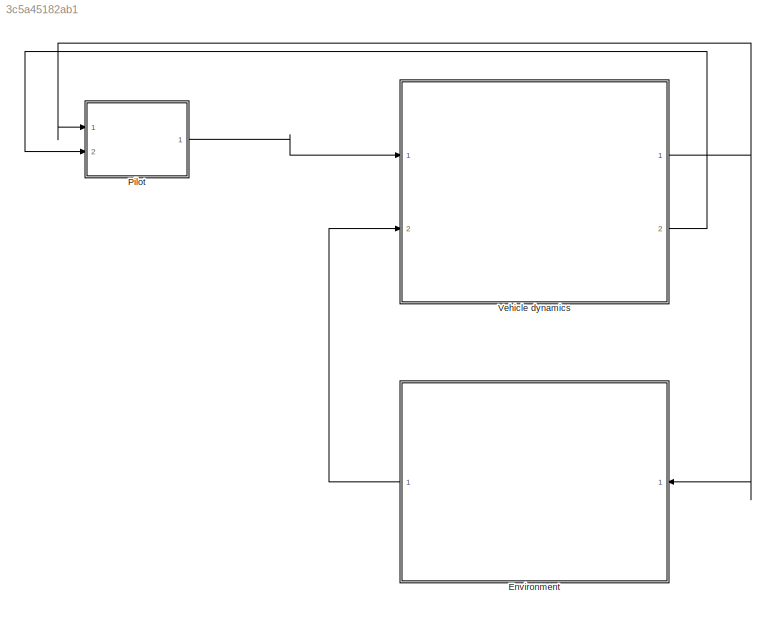
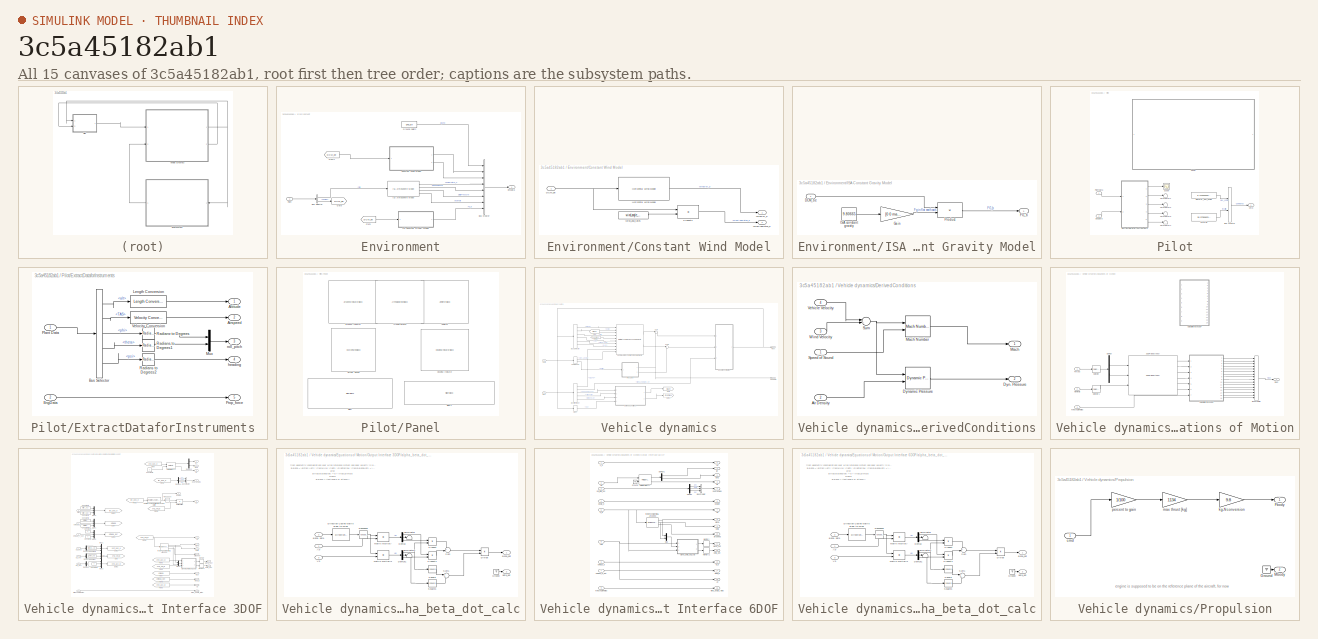
[diagram: thumbnail index - all 15 canvases of the model, root first then tree order]
MODEL slx_3c5a45182ab1
KIND model
CONFIG AbsTol = auto
CONFIG EnableMultiTasking = off
CONFIG FixedStep = 1e-12
CONFIG InitFcn = CessnaCitationData
CONFIG MaxStep = auto
CONFIG MinStep = 1e-12
CONFIG PreLoadFcn = CessnaCitationData\ndatcom_data = datcomimport('Citation.out'); %Datcom data structures
CONFIG RelTol = 1
CONFIG SampleTimeConstraint = Unconstrained
CONFIG SolverName = FixedStepAuto
CONFIG StartTime = 0.0
CONFIG StopTime = 10.0
BLOCK [SubSystem] Environment
  Ports = [1, 1]
  RequestExecContextInheritance = off
BLOCK [BusCreator] Environment/Bus Creator
  DisplayOption = bar
  InheritFromInputs = on
  Inputs = 8
  Ports = [8, 1]
BLOCK [BusSelector] Environment/Bus Selector
  OutputSignals = alt,DCMbe
  Ports = [1, 2]
BLOCK [SubSystem] Environment/Constant Wind Model
  Ports = [1, 2]
  RequestExecContextInheritance = off
BLOCK [Inport] Environment/Constant Wind Model/DCM_be
BLOCK [Reference] Environment/Constant Wind Model/Horizontal Wind Model  REF=aerolibwind2/Horizontal Wind Model
  Ports = [1, 1]
  SourceBlock = aerolibwind2/Horizontal Wind Model
  SourceProductBaseCode = AE
  SourceType = Horizontal Wind Model
BLOCK [Product] Environment/Constant Wind Model/Product2
  Multiplication = Matrix(*)
  Ports = [2, 1]
BLOCK [Outport] Environment/Constant Wind Model/WindAngRates_b
  Port = 2
BLOCK [Outport] Environment/Constant Wind Model/WindVel_b
BLOCK [Constant] Environment/Constant Wind Model/Wind_ang_rates
  Value = wind_angle_rates
BLOCK [Outport] Environment/EnvData
BLOCK [From] Environment/From
  GotoTag = DCM_be
BLOCK [From] Environment/From1
  GotoTag = DCM_be
BLOCK [Goto] Environment/Goto
  GotoTag = DCM_be
BLOCK [Constant] Environment/Ground heigth
  Value = gnd_alt
BLOCK [Reference] Environment/ISA Atmosphere Model  REF=aerolibatmos2/ISA Atmosphere Model
  Ports = [1, 4]
  SourceBlock = aerolibatmos2/ISA Atmosphere Model
  SourceProductBaseCode = AE
  SourceType = International Standard Atmosphere Model
BLOCK [SubSystem] Environment/ISA Constant Gravity Model
  Ports = [1, 1]
  RequestExecContextInheritance = off
BLOCK [Inport] Environment/ISA Constant Gravity Model/DCM_be
BLOCK [Outport] Environment/ISA Constant Gravity Model/FG_b
BLOCK [Gain] Environment/ISA Constant Gravity Model/Gain
  Gain = [0 0 mass]
BLOCK [Constant] Environment/ISA Constant Gravity Model/ISA constant gravity
  Value = 9.80665
BLOCK [Product] Environment/ISA Constant Gravity Model/Product
  Multiplication = Matrix(*)
  Ports = [2, 1]
BLOCK [Inport] Environment/Plant
BLOCK [SubSystem] Pilot
  Ports = [2, 1]
  RequestExecContextInheritance = off
BLOCK [BusCreator] Pilot/Bus Creator
  DisplayOption = bar
  InheritFromInputs = on
  Inputs = 2
  Ports = [2, 1]
BLOCK [Outport] Pilot/Cmd
BLOCK [Constant] Pilot/Elevator_defl_angle
  Value = 6.473333333333333
BLOCK [Inport] Pilot/EngData
  Port = 2
BLOCK [SubSystem] Pilot/ExtractDataforInstruments
  Ports = [2, 5]
  RequestExecContextInheritance = off
BLOCK [Outport] Pilot/ExtractDataforInstruments/Airspeed
  Port = 2
BLOCK [Outport] Pilot/ExtractDataforInstruments/Altitude
BLOCK [BusSelector] Pilot/ExtractDataforInstruments/Bus Selector
  OutputSignals = alt,TAS,body angles.phi,body angles.theta,body angles.psi
  Ports = [1, 5]
BLOCK [Inport] Pilot/ExtractDataforInstruments/EngData
  Port = 2
BLOCK [Reference] Pilot/ExtractDataforInstruments/Length Conversion  REF=aerolibconvert2/Length Conversion
  Ports = [1, 1]
  SourceBlock = aerolibconvert2/Length Conversion
  SourceProductBaseCode = AE
  SourceType = Length Conversion
BLOCK [Mux] Pilot/ExtractDataforInstruments/Mux
  DisplayOption = bar
  Inputs = 2
  Ports = [2, 1]
BLOCK [Inport] Pilot/ExtractDataforInstruments/Plant Data
BLOCK [Outport] Pilot/ExtractDataforInstruments/Prop_force
  Port = 5
BLOCK [Reference] Pilot/ExtractDataforInstruments/Radians to Degrees  REF=simulink_extras/Transformations/Radians
to Degrees
  Ports = [1, 1]
  SourceBlock = simulink_extras/Transformations/Radians\nto Degrees
  SourceProductBaseCode = SL
  SourceType = RadiansToDegrees
BLOCK [Reference] Pilot/ExtractDataforInstruments/Radians to Degrees1  REF=simulink_extras/Transformations/Radians
to Degrees
  Ports = [1, 1]
  SourceBlock = simulink_extras/Transformations/Radians\nto Degrees
  SourceProductBaseCode = SL
  SourceType = RadiansToDegrees
BLOCK [Reference] Pilot/ExtractDataforInstruments/Radians to Degrees2  REF=simulink_extras/Transformations/Radians
to Degrees
  Ports = [1, 1]
  SourceBlock = simulink_extras/Transformations/Radians\nto Degrees
  SourceProductBaseCode = SL
  SourceType = RadiansToDegrees
BLOCK [Reference] Pilot/ExtractDataforInstruments/Velocity Conversion  REF=aerolibconvert2/Velocity Conversion
  Ports = [1, 1]
  SourceBlock = aerolibconvert2/Velocity Conversion
  SourceProductBaseCode = AE
  SourceType = Velocity Conversion
BLOCK [Outport] Pilot/ExtractDataforInstruments/heading
  Port = 4
BLOCK [Outport] Pilot/ExtractDataforInstruments/roll_pitch
  Port = 3
BLOCK [SubSystem] Pilot/Panel
  Ports = []
  RequestExecContextInheritance = off
BLOCK [AirspeedIndicatorBlock] Pilot/Panel/Airspeed Indicator
  LabelPosition = Hide
BLOCK [AltimeterBlock] Pilot/Panel/Altimeter
  LabelPosition = Hide
BLOCK [ArtificialHorizonBlock] Pilot/Panel/Artificial Horizon
  LabelPosition = Hide
BLOCK [CustomWebBlock] Pilot/Panel/Circular Gauge
  Configuration = {"components":[{"name":"CircularScaleComponent","settings":{"bounds":{"max":11113.2,"min":0,"tickInterval":"auto"},"direction":"cw","flipLimits":0,"innerRadius":0.75,"internalTickHeightScaleFactor":1,"labelColor":[255,252,199],"labelFont":{"font":"Arial","fontSize":12},"labelTransparency":1,"minorTickHeightScaleFactor":0.2,"needleImage":{"size":[1890,567],"src":"data:image\/svg+xml;base64,PD94bWwg...<+15939ch>
  LabelPosition = Hide
  ShowInitialText = on
BLOCK [HeadingIndicatorBlock] Pilot/Panel/Heading Indicator
  LabelPosition = Hide
BLOCK [SliderBlock] Pilot/Panel/Slider
  ScaleMax = 16
  ScaleMin = -16
BLOCK [SliderBlock] Pilot/Panel/Slider1
BLOCK [Inport] Pilot/PlantData
BLOCK [Scope] Pilot/Scope
  Floating = off
  NumInputPorts = 1
  Ports = [1]
  ScopeSpecificationString = Simulink.scopes.TimeScopeBlockCfg('CurrentConfiguration', extmgr.ConfigurationSet(extmgr.Configuration('Core','General UI',true),extmgr.Configuration('Core','Source UI',true),extmgr.Configuration('Sources','WiredSimulink',true),extmgr.Configuration('Visuals','Time Domain',true,'SerializedDisplays',{struct('MinYLimReal','-4921.26091','MaxYLimReal','-4921.25801','YLabelReal','','MinYLimMag','  0.000...<+1491ch>
BLOCK [Terminator] Pilot/Terminator1
BLOCK [Terminator] Pilot/Terminator2
BLOCK [Terminator] Pilot/Terminator3
BLOCK [Terminator] Pilot/Terminator4
BLOCK [Constant] Pilot/Throttle
  Value = 30.97350823045267
BLOCK [SubSystem] Vehicle dynamics
  Ports = [2, 2]
  RequestExecContextInheritance = off
BLOCK [BusSelector] Vehicle dynamics/Bus Selector
  OutputSignals = alpha,beta,alt,Vb,alpha_dot,w_b
  Ports = [1, 6]
BLOCK [Inport] Vehicle dynamics/Com
BLOCK [BusSelector] Vehicle dynamics/Commands
  OutputSignals = elev_angle,throttle
  Ports = [1, 2]
BLOCK [SubSystem] Vehicle dynamics/DerivedConditions
  Ports = [4, 2]
  RequestExecContextInheritance = off
BLOCK [Inport] Vehicle dynamics/DerivedConditions/Air Density
  Port = 2
BLOCK [Outport] Vehicle dynamics/DerivedConditions/Dyn. Pressure
  Port = 2
BLOCK [Reference] Vehicle dynamics/DerivedConditions/Dynamic Pressure  REF=aerolibasang/Dynamic Pressure
  Ports = [2, 1]
  SourceBlock = aerolibasang/Dynamic Pressure
  SourceProductBaseCode = AE
  SourceType = Dynamic Pressure
BLOCK [Outport] Vehicle dynamics/DerivedConditions/Mach
BLOCK [Reference] Vehicle dynamics/DerivedConditions/Mach Number  REF=aerolibasang/Mach Number
  Ports = [2, 1]
  SourceBlock = aerolibasang/Mach Number
  SourceProductBaseCode = AE
  SourceType = Mach Number
BLOCK [Inport] Vehicle dynamics/DerivedConditions/Speed of Sound
BLOCK [Sum] Vehicle dynamics/DerivedConditions/Sum
  Inputs = |+-
  Ports = [2, 1]
BLOCK [Inport] Vehicle dynamics/DerivedConditions/Vehicle Velocity
  Port = 4
BLOCK [Inport] Vehicle dynamics/DerivedConditions/Wind Velocity
  Port = 3
BLOCK [Outport] Vehicle dynamics/EngData
  Port = 2
BLOCK [Inport] Vehicle dynamics/Env
  Port = 2
BLOCK [BusSelector] Vehicle dynamics/Environment
  OutputSignals = alt_gnd,WindAngRates_b,Speed of Sound,Air density,WindVel_b
  Ports = [1, 5]
BLOCK [SubSystem] Vehicle dynamics/Equations of Motion
  Ports = [3, 1]
  RequestExecContextInheritance = off
BLOCK [Reference] Vehicle dynamics/Equations of Motion/3DOF (Body Axes)  REF=shared3dof/3DOF (Body Axes)
  Ports = [3, 6]
  SourceBlock = shared3dof/3DOF (Body Axes)
  SourceProductBaseCode = AE,PW,MT,UV,VE,VP
  SourceType = 3DOF EoM
BLOCK [BusCreator] Vehicle dynamics/Equations of Motion/Bus Creator
  DisplayOption = bar
  InheritFromInputs = on
  Inputs = 16
  Ports = [16, 1]
BLOCK [Demux] Vehicle dynamics/Equations of Motion/Demux
  Outputs = 2
  Ports = [1, 2]
BLOCK [Inport] Vehicle dynamics/Equations of Motion/Forces
BLOCK [Inport] Vehicle dynamics/Equations of Motion/Moments
  Port = 2
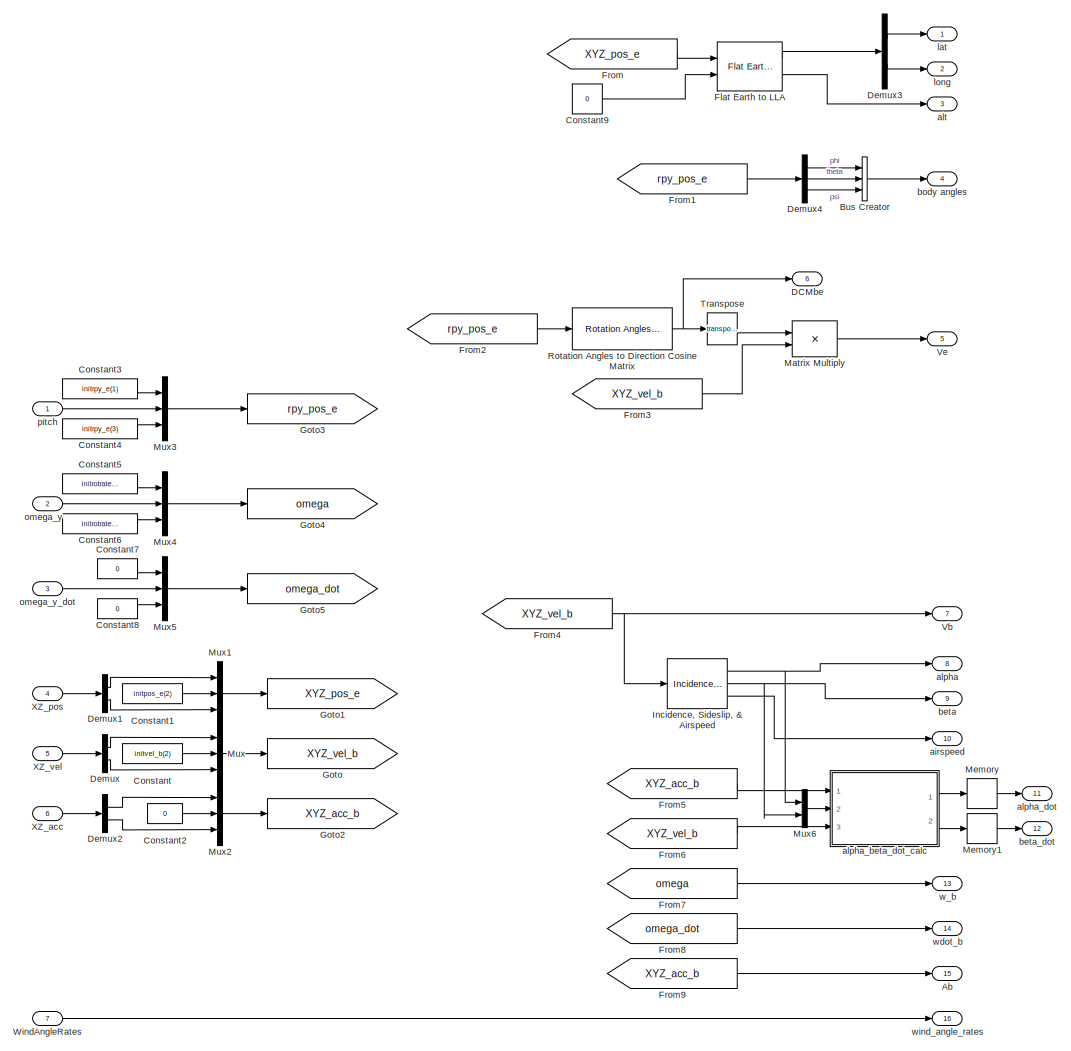
[diagram: Vehicle dynamics/Equations of Motion/Output Interface 3DOF - part 1/1, most of the canvas]
BLOCK [SubSystem] Vehicle dynamics/Equations of Motion/Output Interface 3DOF
  Ports = [7, 16]
  RequestExecContextInheritance = off
BLOCK [Outport] Vehicle dynamics/Equations of Motion/Output Interface 3DOF/Ab
  Port = 15
BLOCK [BusCreator] Vehicle dynamics/Equations of Motion/Output Interface 3DOF/Bus Creator
  DisplayOption = bar
  InheritFromInputs = on
  Inputs = 3
  Ports = [3, 1]
BLOCK [Constant] Vehicle dynamics/Equations of Motion/Output Interface 3DOF/Constant
  Value = initvel_b(2)
BLOCK [Constant] Vehicle dynamics/Equations of Motion/Output Interface 3DOF/Constant1
  Value = initpos_e(2)
BLOCK [Constant] Vehicle dynamics/Equations of Motion/Output Interface 3DOF/Constant2
  Value = 0
BLOCK [Constant] Vehicle dynamics/Equations of Motion/Output Interface 3DOF/Constant3
  Value = initrpy_e(1)
BLOCK [Constant] Vehicle dynamics/Equations of Motion/Output Interface 3DOF/Constant4
  Value = initrpy_e(3)
BLOCK [Constant] Vehicle dynamics/Equations of Motion/Output Interface 3DOF/Constant5
  Value = initrotrates_e(1)
BLOCK [Constant] Vehicle dynamics/Equations of Motion/Output Interface 3DOF/Constant6
  Value = initrotrates_e(3)
BLOCK [Constant] Vehicle dynamics/Equations of Motion/Output Interface 3DOF/Constant7
  Value = 0
BLOCK [Constant] Vehicle dynamics/Equations of Motion/Output Interface 3DOF/Constant8
  Value = 0
BLOCK [Constant] Vehicle dynamics/Equations of Motion/Output Interface 3DOF/Constant9
  Value = 0
BLOCK [Outport] Vehicle dynamics/Equations of Motion/Output Interface 3DOF/DCMbe
  Port = 6
BLOCK [Demux] Vehicle dynamics/Equations of Motion/Output Interface 3DOF/Demux
  Outputs = 2
  Ports = [1, 2]
BLOCK [Demux] Vehicle dynamics/Equations of Motion/Output Interface 3DOF/Demux1
  Outputs = 2
  Ports = [1, 2]
BLOCK [Demux] Vehicle dynamics/Equations of Motion/Output Interface 3DOF/Demux2
  Outputs = 2
  Ports = [1, 2]
BLOCK [Demux] Vehicle dynamics/Equations of Motion/Output Interface 3DOF/Demux3
  Outputs = 2
  Ports = [1, 2]
BLOCK [Demux] Vehicle dynamics/Equations of Motion/Output Interface 3DOF/Demux4
  Outputs = 3
  Ports = [1, 3]
BLOCK [Reference] Vehicle dynamics/Equations of Motion/Output Interface 3DOF/Flat Earth to LLA  REF=aerolibtransform2/Flat Earth to LLA
  Ports = [2, 2]
  SourceBlock = aerolibtransform2/Flat Earth to LLA
  SourceProductBaseCode = AE
  SourceType = Flat Earth to LLA
BLOCK [From] Vehicle dynamics/Equations of Motion/Output Interface 3DOF/From
  GotoTag = XYZ_pos_e
BLOCK [From] Vehicle dynamics/Equations of Motion/Output Interface 3DOF/From1
  GotoTag = rpy_pos_e
BLOCK [From] Vehicle dynamics/Equations of Motion/Output Interface 3DOF/From2
  GotoTag = rpy_pos_e
BLOCK [From] Vehicle dynamics/Equations of Motion/Output Interface 3DOF/From3
  GotoTag = XYZ_vel_b
BLOCK [From] Vehicle dynamics/Equations of Motion/Output Interface 3DOF/From4
  GotoTag = XYZ_vel_b
BLOCK [From] Vehicle dynamics/Equations of Motion/Output Interface 3DOF/From5
  GotoTag = XYZ_acc_b
BLOCK [From] Vehicle dynamics/Equations of Motion/Output Interface 3DOF/From6
  GotoTag = XYZ_vel_b
BLOCK [From] Vehicle dynamics/Equations of Motion/Output Interface 3DOF/From7
  GotoTag = omega
BLOCK [From] Vehicle dynamics/Equations of Motion/Output Interface 3DOF/From8
  GotoTag = omega_dot
BLOCK [From] Vehicle dynamics/Equations of Motion/Output Interface 3DOF/From9
  GotoTag = XYZ_acc_b
BLOCK [Goto] Vehicle dynamics/Equations of Motion/Output Interface 3DOF/Goto
  GotoTag = XYZ_vel_b
BLOCK [Goto] Vehicle dynamics/Equations of Motion/Output Interface 3DOF/Goto1
  GotoTag = XYZ_pos_e
BLOCK [Goto] Vehicle dynamics/Equations of Motion/Output Interface 3DOF/Goto2
  GotoTag = XYZ_acc_b
BLOCK [Goto] Vehicle dynamics/Equations of Motion/Output Interface 3DOF/Goto3
  GotoTag = rpy_pos_e
BLOCK [Goto] Vehicle dynamics/Equations of Motion/Output Interface 3DOF/Goto4
  GotoTag = omega
BLOCK [Goto] Vehicle dynamics/Equations of Motion/Output Interface 3DOF/Goto5
  GotoTag = omega_dot
BLOCK [Reference] Vehicle dynamics/Equations of Motion/Output Interface 3DOF/Incidence, Sideslip, & Airspeed  REF=aerolibasang/Incidence, Sideslip,
& Airspeed
  Ports = [1, 3]
  SourceBlock = aerolibasang/Incidence, Sideslip,\n& Airspeed
  SourceProductBaseCode = AE
  SourceType = Incidence,Sideslip,&Airspeed
BLOCK [Product] Vehicle dynamics/Equations of Motion/Output Interface 3DOF/Matrix Multiply
  Multiplication = Matrix(*)
  Ports = [2, 1]
BLOCK [Memory] Vehicle dynamics/Equations of Motion/Output Interface 3DOF/Memory
BLOCK [Memory] Vehicle dynamics/Equations of Motion/Output Interface 3DOF/Memory1
BLOCK [Mux] Vehicle dynamics/Equations of Motion/Output Interface 3DOF/Mux
  DisplayOption = bar
  Inputs = 3
  Ports = [3, 1]
BLOCK [Mux] Vehicle dynamics/Equations of Motion/Output Interface 3DOF/Mux1
  DisplayOption = bar
  Inputs = 3
  Ports = [3, 1]
BLOCK [Mux] Vehicle dynamics/Equations of Motion/Output Interface 3DOF/Mux2
  DisplayOption = bar
  Inputs = 3
  Ports = [3, 1]
BLOCK [Mux] Vehicle dynamics/Equations of Motion/Output Interface 3DOF/Mux3
  DisplayOption = bar
  Inputs = 3
  Ports = [3, 1]
BLOCK [Mux] Vehicle dynamics/Equations of Motion/Output Interface 3DOF/Mux4
  DisplayOption = bar
  Inputs = 3
  Ports = [3, 1]
BLOCK [Mux] Vehicle dynamics/Equations of Motion/Output Interface 3DOF/Mux5
  DisplayOption = bar
  Inputs = 3
  Ports = [3, 1]
BLOCK [Mux] Vehicle dynamics/Equations of Motion/Output Interface 3DOF/Mux6
  DisplayOption = bar
  Inputs = 2
  Ports = [2, 1]
BLOCK [Reference] Vehicle dynamics/Equations of Motion/Output Interface 3DOF/Rotation Angles to Direction Cosine Matrix  REF=sharedtransform/Rotation Angles to
Direction Cosine Matrix
  AttributesFormatString = Rotation Order: %<rotationOrder>
  Ports = [1, 1]
  SourceBlock = sharedtransform/Rotation Angles to\nDirection Cosine Matrix
  SourceProductBaseCode = AE,PW,MT,UV,VE,VP
  SourceType = Ang2DCM
BLOCK [Math] Vehicle dynamics/Equations of Motion/Output Interface 3DOF/Transpose
  Operator = transpose
  Ports = [1, 1]
BLOCK [Outport] Vehicle dynamics/Equations of Motion/Output Interface 3DOF/Vb
  Port = 7
BLOCK [Outport] Vehicle dynamics/Equations of Motion/Output Interface 3DOF/Ve
  Port = 5
BLOCK [Inport] Vehicle dynamics/Equations of Motion/Output Interface 3DOF/WindAngleRates
  Port = 7
BLOCK [Inport] Vehicle dynamics/Equations of Motion/Output Interface 3DOF/XZ_acc
  Port = 6
BLOCK [Inport] Vehicle dynamics/Equations of Motion/Output Interface 3DOF/XZ_pos
  Port = 4
BLOCK [Inport] Vehicle dynamics/Equations of Motion/Output Interface 3DOF/XZ_vel
  Port = 5
BLOCK [Outport] Vehicle dynamics/Equations of Motion/Output Interface 3DOF/airspeed
  Port = 10
BLOCK [Outport] Vehicle dynamics/Equations of Motion/Output Interface 3DOF/alpha
  Port = 8
BLOCK [SubSystem] Vehicle dynamics/Equations of Motion/Output Interface 3DOF/alpha_beta_dot_calc
  Ports = [3, 2]
  RequestExecContextInheritance = off
BLOCK [Inport] Vehicle dynamics/Equations of Motion/Output Interface 3DOF/alpha_beta_dot_calc/Ab
BLOCK [Demux] Vehicle dynamics/Equations of Motion/Output Interface 3DOF/alpha_beta_dot_calc/Demux
  Outputs = 3
  Ports = [1, 3]
BLOCK [Demux] Vehicle dynamics/Equations of Motion/Output Interface 3DOF/alpha_beta_dot_calc/Demux1
  Outputs = 3
  Ports = [1, 3]
BLOCK [Reference] Vehicle dynamics/Equations of Motion/Output Interface 3DOF/alpha_beta_dot_calc/Direction Cosine Matrix Body to Wind  REF=aerolibtransform2/Direction Cosine Matrix
Body to Wind
  Ports = [1, 1]
  SourceBlock = aerolibtransform2/Direction Cosine Matrix\nBody to Wind
  SourceProductBaseCode = AE
  SourceType = DCM Body to Wind
BLOCK [Product] Vehicle dynamics/Equations of Motion/Output Interface 3DOF/alpha_beta_dot_calc/Divide
  Inputs = */
  Ports = [2, 1]
BLOCK [Ground] Vehicle dynamics/Equations of Motion/Output Interface 3DOF/alpha_beta_dot_calc/Ground
BLOCK [Product] Vehicle dynamics/Equations of Motion/Output Interface 3DOF/alpha_beta_dot_calc/Matrix Multiply
  Multiplication = Matrix(*)
  Ports = [2, 1]
BLOCK [Product] Vehicle dynamics/Equations of Motion/Output Interface 3DOF/alpha_beta_dot_calc/Matrix Multiply1
  Multiplication = Matrix(*)
  Ports = [2, 1]
BLOCK [Product] Vehicle dynamics/Equations of Motion/Output Interface 3DOF/alpha_beta_dot_calc/Product
  Ports = [2, 1]
BLOCK [Product] Vehicle dynamics/Equations of Motion/Output Interface 3DOF/alpha_beta_dot_calc/Product1
  Ports = [2, 1]
BLOCK [Math] Vehicle dynamics/Equations of Motion/Output Interface 3DOF/alpha_beta_dot_calc/Square
  Operator = square
  Ports = [1, 1]
BLOCK [Math] Vehicle dynamics/Equations of Motion/Output Interface 3DOF/alpha_beta_dot_calc/Square1
  Operator = square
  Ports = [1, 1]
BLOCK [Sum] Vehicle dynamics/Equations of Motion/Output Interface 3DOF/alpha_beta_dot_calc/Sum
  Inputs = +|-
  Ports = [2, 1]
BLOCK [Sum] Vehicle dynamics/Equations of Motion/Output Interface 3DOF/alpha_beta_dot_calc/Sum1
  Inputs = +|+
  Ports = [2, 1]
BLOCK [Terminator] Vehicle dynamics/Equations of Motion/Output Interface 3DOF/alpha_beta_dot_calc/Terminator
BLOCK [Terminator] Vehicle dynamics/Equations of Motion/Output Interface 3DOF/alpha_beta_dot_calc/Terminator1
BLOCK [Math] Vehicle dynamics/Equations of Motion/Output Interface 3DOF/alpha_beta_dot_calc/Transpose
  Operator = transpose
  Ports = [1, 1]
BLOCK [Inport] Vehicle dynamics/Equations of Motion/Output Interface 3DOF/alpha_beta_dot_calc/Vb
  Port = 3
BLOCK [Inport] Vehicle dynamics/Equations of Motion/Output Interface 3DOF/alpha_beta_dot_calc/alpha, beta
  Port = 2
BLOCK [Outport] Vehicle dynamics/Equations of Motion/Output Interface 3DOF/alpha_beta_dot_calc/alpha_dot
BLOCK [Outport] Vehicle dynamics/Equations of Motion/Output Interface 3DOF/alpha_beta_dot_calc/beta_dot
  Port = 2
BLOCK [Outport] Vehicle dynamics/Equations of Motion/Output Interface 3DOF/alpha_dot
  Port = 11
BLOCK [Outport] Vehicle dynamics/Equations of Motion/Output Interface 3DOF/alt
  Port = 3
BLOCK [Outport] Vehicle dynamics/Equations of Motion/Output Interface 3DOF/beta
  Port = 9
BLOCK [Outport] Vehicle dynamics/Equations of Motion/Output Interface 3DOF/beta_dot
  Port = 12
BLOCK [Outport] Vehicle dynamics/Equations of Motion/Output Interface 3DOF/body angles
  Port = 4
BLOCK [Outport] Vehicle dynamics/Equations of Motion/Output Interface 3DOF/lat
BLOCK [Outport] Vehicle dynamics/Equations of Motion/Output Interface 3DOF/long
  Port = 2
BLOCK [Inport] Vehicle dynamics/Equations of Motion/Output Interface 3DOF/omega_y
  Port = 2
BLOCK [Inport] Vehicle dynamics/Equations of Motion/Output Interface 3DOF/omega_y_dot
  Port = 3
BLOCK [Inport] Vehicle dynamics/Equations of Motion/Output Interface 3DOF/pitch
BLOCK [Outport] Vehicle dynamics/Equations of Motion/Output Interface 3DOF/w_b
  Port = 13
BLOCK [Outport] Vehicle dynamics/Equations of Motion/Output Interface 3DOF/wdot_b
  Port = 14
BLOCK [Outport] Vehicle dynamics/Equations of Motion/Output Interface 3DOF/wind_angle_rates
  Port = 16
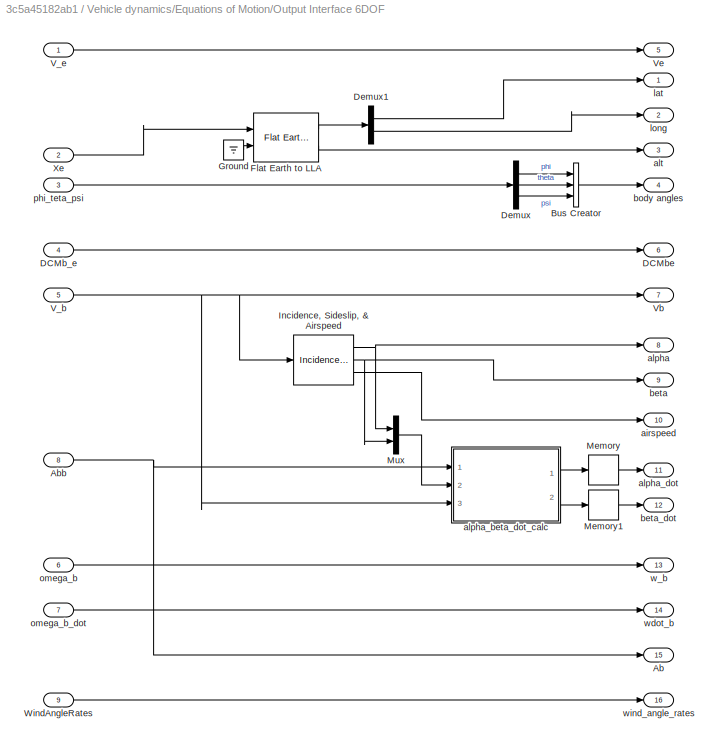
BLOCK [SubSystem] Vehicle dynamics/Equations of Motion/Output Interface 6DOF
  Commented = on
  Ports = [9, 16]
  RequestExecContextInheritance = off
BLOCK [Outport] Vehicle dynamics/Equations of Motion/Output Interface 6DOF/Ab
  Port = 15
BLOCK [Inport] Vehicle dynamics/Equations of Motion/Output Interface 6DOF/Abb
  Port = 8
BLOCK [BusCreator] Vehicle dynamics/Equations of Motion/Output Interface 6DOF/Bus Creator
  DisplayOption = bar
  InheritFromInputs = on
  Inputs = 3
  Ports = [3, 1]
BLOCK [Inport] Vehicle dynamics/Equations of Motion/Output Interface 6DOF/DCMb_e
  Port = 4
BLOCK [Outport] Vehicle dynamics/Equations of Motion/Output Interface 6DOF/DCMbe
  Port = 6
BLOCK [Demux] Vehicle dynamics/Equations of Motion/Output Interface 6DOF/Demux
  Outputs = 3
  Ports = [1, 3]
BLOCK [Demux] Vehicle dynamics/Equations of Motion/Output Interface 6DOF/Demux1
  Outputs = 2
  Ports = [1, 2]
BLOCK [Reference] Vehicle dynamics/Equations of Motion/Output Interface 6DOF/Flat Earth to LLA  REF=aerolibtransform2/Flat Earth to LLA
  Ports = [2, 2]
  SourceBlock = aerolibtransform2/Flat Earth to LLA
  SourceProductBaseCode = AE
  SourceType = Flat Earth to LLA
BLOCK [Ground] Vehicle dynamics/Equations of Motion/Output Interface 6DOF/Ground
BLOCK [Reference] Vehicle dynamics/Equations of Motion/Output Interface 6DOF/Incidence, Sideslip, & Airspeed  REF=aerolibasang/Incidence, Sideslip,
& Airspeed
  Ports = [1, 3]
  SourceBlock = aerolibasang/Incidence, Sideslip,\n& Airspeed
  SourceProductBaseCode = AE
  SourceType = Incidence,Sideslip,&Airspeed
BLOCK [Memory] Vehicle dynamics/Equations of Motion/Output Interface 6DOF/Memory
BLOCK [Memory] Vehicle dynamics/Equations of Motion/Output Interface 6DOF/Memory1
BLOCK [Mux] Vehicle dynamics/Equations of Motion/Output Interface 6DOF/Mux
  DisplayOption = bar
  Inputs = 2
  Ports = [2, 1]
BLOCK [Inport] Vehicle dynamics/Equations of Motion/Output Interface 6DOF/V_b
  Port = 5
BLOCK [Inport] Vehicle dynamics/Equations of Motion/Output Interface 6DOF/V_e
BLOCK [Outport] Vehicle dynamics/Equations of Motion/Output Interface 6DOF/Vb
  Port = 7
BLOCK [Outport] Vehicle dynamics/Equations of Motion/Output Interface 6DOF/Ve
  Port = 5
BLOCK [Inport] Vehicle dynamics/Equations of Motion/Output Interface 6DOF/WindAngleRates
  Port = 9
BLOCK [Inport] Vehicle dynamics/Equations of Motion/Output Interface 6DOF/Xe
  Port = 2
BLOCK [Outport] Vehicle dynamics/Equations of Motion/Output Interface 6DOF/airspeed
  Port = 10
BLOCK [Outport] Vehicle dynamics/Equations of Motion/Output Interface 6DOF/alpha
  Port = 8
BLOCK [SubSystem] Vehicle dynamics/Equations of Motion/Output Interface 6DOF/alpha_beta_dot_calc
  Ports = [3, 2]
  RequestExecContextInheritance = off
BLOCK [Inport] Vehicle dynamics/Equations of Motion/Output Interface 6DOF/alpha_beta_dot_calc/Ab
BLOCK [Demux] Vehicle dynamics/Equations of Motion/Output Interface 6DOF/alpha_beta_dot_calc/Demux
  Outputs = 3
  Ports = [1, 3]
BLOCK [Demux] Vehicle dynamics/Equations of Motion/Output Interface 6DOF/alpha_beta_dot_calc/Demux1
  Outputs = 3
  Ports = [1, 3]
BLOCK [Reference] Vehicle dynamics/Equations of Motion/Output Interface 6DOF/alpha_beta_dot_calc/Direction Cosine Matrix Body to Wind  REF=aerolibtransform2/Direction Cosine Matrix
Body to Wind
  Ports = [1, 1]
  SourceBlock = aerolibtransform2/Direction Cosine Matrix\nBody to Wind
  SourceProductBaseCode = AE
  SourceType = DCM Body to Wind
BLOCK [Product] Vehicle dynamics/Equations of Motion/Output Interface 6DOF/alpha_beta_dot_calc/Divide
  Inputs = */
  Ports = [2, 1]
BLOCK [Ground] Vehicle dynamics/Equations of Motion/Output Interface 6DOF/alpha_beta_dot_calc/Ground
BLOCK [Product] Vehicle dynamics/Equations of Motion/Output Interface 6DOF/alpha_beta_dot_calc/Matrix Multiply
  Multiplication = Matrix(*)
  Ports = [2, 1]
BLOCK [Product] Vehicle dynamics/Equations of Motion/Output Interface 6DOF/alpha_beta_dot_calc/Matrix Multiply1
  Multiplication = Matrix(*)
  Ports = [2, 1]
BLOCK [Product] Vehicle dynamics/Equations of Motion/Output Interface 6DOF/alpha_beta_dot_calc/Product
  Ports = [2, 1]
BLOCK [Product] Vehicle dynamics/Equations of Motion/Output Interface 6DOF/alpha_beta_dot_calc/Product1
  Ports = [2, 1]
BLOCK [Math] Vehicle dynamics/Equations of Motion/Output Interface 6DOF/alpha_beta_dot_calc/Square
  Operator = square
  Ports = [1, 1]
BLOCK [Math] Vehicle dynamics/Equations of Motion/Output Interface 6DOF/alpha_beta_dot_calc/Square1
  Operator = square
  Ports = [1, 1]
BLOCK [Sum] Vehicle dynamics/Equations of Motion/Output Interface 6DOF/alpha_beta_dot_calc/Sum
  Inputs = +|-
  Ports = [2, 1]
BLOCK [Sum] Vehicle dynamics/Equations of Motion/Output Interface 6DOF/alpha_beta_dot_calc/Sum1
  Inputs = +|+
  Ports = [2, 1]
BLOCK [Terminator] Vehicle dynamics/Equations of Motion/Output Interface 6DOF/alpha_beta_dot_calc/Terminator
BLOCK [Terminator] Vehicle dynamics/Equations of Motion/Output Interface 6DOF/alpha_beta_dot_calc/Terminator1
BLOCK [Math] Vehicle dynamics/Equations of Motion/Output Interface 6DOF/alpha_beta_dot_calc/Transpose
  Operator = transpose
  Ports = [1, 1]
BLOCK [Inport] Vehicle dynamics/Equations of Motion/Output Interface 6DOF/alpha_beta_dot_calc/Vb
  Port = 3
BLOCK [Inport] Vehicle dynamics/Equations of Motion/Output Interface 6DOF/alpha_beta_dot_calc/alpha, beta
  Port = 2
BLOCK [Outport] Vehicle dynamics/Equations of Motion/Output Interface 6DOF/alpha_beta_dot_calc/alpha_dot
BLOCK [Outport] Vehicle dynamics/Equations of Motion/Output Interface 6DOF/alpha_beta_dot_calc/beta_dot
  Port = 2
BLOCK [Outport] Vehicle dynamics/Equations of Motion/Output Interface 6DOF/alpha_dot
  Port = 11
BLOCK [Outport] Vehicle dynamics/Equations of Motion/Output Interface 6DOF/alt
  Port = 3
BLOCK [Outport] Vehicle dynamics/Equations of Motion/Output Interface 6DOF/beta
  Port = 9
BLOCK [Outport] Vehicle dynamics/Equations of Motion/Output Interface 6DOF/beta_dot
  Port = 12
BLOCK [Outport] Vehicle dynamics/Equations of Motion/Output Interface 6DOF/body angles
  Port = 4
BLOCK [Outport] Vehicle dynamics/Equations of Motion/Output Interface 6DOF/lat
BLOCK [Outport] Vehicle dynamics/Equations of Motion/Output Interface 6DOF/long
  Port = 2
BLOCK [Inport] Vehicle dynamics/Equations of Motion/Output Interface 6DOF/omega_b
  Port = 6
BLOCK [Inport] Vehicle dynamics/Equations of Motion/Output Interface 6DOF/omega_b_dot
  Port = 7
BLOCK [Inport] Vehicle dynamics/Equations of Motion/Output Interface 6DOF/phi_teta_psi
  Port = 3
BLOCK [Outport] Vehicle dynamics/Equations of Motion/Output Interface 6DOF/w_b
  Port = 13
BLOCK [Outport] Vehicle dynamics/Equations of Motion/Output Interface 6DOF/wdot_b
  Port = 14
BLOCK [Outport] Vehicle dynamics/Equations of Motion/Output Interface 6DOF/wind_angle_rates
  Port = 16
BLOCK [Outport] Vehicle dynamics/Equations of Motion/Plant
BLOCK [Selector] Vehicle dynamics/Equations of Motion/Selector
  IndexOptions = Index vector (dialog)
  Indices = [1 3]
  InputPortWidth = 3
  OutputSizes = 1
  Ports = [1, 1]
BLOCK [Selector] Vehicle dynamics/Equations of Motion/Selector1
  IndexOptions = Index vector (dialog)
  Indices = [2]
  InputPortWidth = 3
  OutputSizes = 1
  Ports = [1, 1]
BLOCK [Inport] Vehicle dynamics/Equations of Motion/WindAngleRates
  Port = 3
BLOCK [From] Vehicle dynamics/From
  GotoTag = Mach
BLOCK [From] Vehicle dynamics/From1
  GotoTag = DynPress
BLOCK [Goto] Vehicle dynamics/Goto
  GotoTag = Mach
BLOCK [Goto] Vehicle dynamics/Goto1
  GotoTag = DynPress
BLOCK [Outport] Vehicle dynamics/Plant
BLOCK [SubSystem] Vehicle dynamics/Propulsion
  Ports = [1, 2]
  RequestExecContextInheritance = off
BLOCK [Outport] Vehicle dynamics/Propulsion/Fbody
BLOCK [Ground] Vehicle dynamics/Propulsion/Ground
BLOCK [Outport] Vehicle dynamics/Propulsion/Mbody
  Port = 2
BLOCK [Inport] Vehicle dynamics/Propulsion/cmd
BLOCK [Gain] Vehicle dynamics/Propulsion/kg-N conversion
  Gain = 9.8
BLOCK [Gain] Vehicle dynamics/Propulsion/max thrust [kg]
  Gain = 1134
BLOCK [Gain] Vehicle dynamics/Propulsion/percent to gain
  Gain = 1/100
BLOCK [Sum] Vehicle dynamics/Sum
  Inputs = |++
  Ports = [2, 1]
BLOCK [Sum] Vehicle dynamics/Sum1
  Inputs = |++
  Ports = [2, 1]
BLOCK [Reference] Vehicle dynamics/VehicleAerodynamicForcesMoments  REF=aerolibadyn/Digital DATCOM
Forces and Moments
  Ports = [10, 2]
  SourceBlock = aerolibadyn/Digital DATCOM\nForces and Moments
  SourceProductBaseCode = AE
  SourceType = Digital DATCOM Forces and Moments
BLOCK [BusSelector] Vehicle dynamics/plant
  OutputSignals = Vb
  Ports = [1, 1]
ANNOTATION Vehicle dynamics/Equations of Motion/Output Interface 3DOF/alpha_beta_dot_calc: from geometric considerations over wind reference system and body velocity in body reference frame: $\alpha = \arctan \left( \frac{w}{u} \right) \Rightarrow \frac{d\alpha}{dt} = \frac{1}{1+\frac{w^2}{u^2}}\ \frac{d}{dt}\left({\frac{w}{u}}\right) = \frac{\dot{w}u - w\dot{u}}{u^2 + w^2}$ also: $\frac{d\alpha}{dt} = q + \frac{Z}{mu}$ where: $\alpha = \text{angle of attack}\\ \beta = \text{sideslip an...<+293ch>
ANNOTATION Vehicle dynamics/Equations of Motion/Output Interface 6DOF/alpha_beta_dot_calc: from geometric considerations over wind reference system and body velocity in body reference frame: $\alpha = \arctan \left( \frac{w}{u} \right) \Rightarrow \frac{d\alpha}{dt} = \frac{1}{1+\frac{w^2}{u^2}}\ \frac{d}{dt}\left({\frac{w}{u}}\right) = \frac{\dot{w}u - w\dot{u}}{u^2 + w^2}$ also: $\frac{d\alpha}{dt} = q + \frac{Z}{mu}$ where: $\alpha = \text{angle of attack}\\ \beta = \text{sideslip an...<+293ch>
ANNOTATION Vehicle dynamics/Propulsion: engine is supposed to be on the reference plane of the aircraft, for now
LINE Environment/Bus Creator:1 -> Environment/EnvData:1
LINE Environment/Bus Selector:1 -> Environment/ISA Atmosphere Model:1
LINE Environment/Bus Selector:2 -> Environment/Goto:1
NET Environment/Constant Wind Model/DCM_be:1 -> Environment/Constant Wind Model/Horizontal Wind Model:1, Environment/Constant Wind Model/Product2:1
LINE Environment/Constant Wind Model/Horizontal Wind Model:1 -> Environment/Constant Wind Model/WindVel_b:1
LINE Environment/Constant Wind Model/Product2:1 -> Environment/Constant Wind Model/WindAngRates_b:1
LINE Environment/Constant Wind Model/Wind_ang_rates:1 -> Environment/Constant Wind Model/Product2:2
LINE Environment/Constant Wind Model:1 -> Environment/Bus Creator:2
LINE Environment/Constant Wind Model:2 -> Environment/Bus Creator:3
LINE Environment/From1:1 -> Environment/Constant Wind Model:1
LINE Environment/From:1 -> Environment/ISA Constant Gravity Model:1
LINE Environment/Ground heigth:1 -> Environment/Bus Creator:1
LINE Environment/ISA Atmosphere Model:1 -> Environment/Bus Creator:4
LINE Environment/ISA Atmosphere Model:2 -> Environment/Bus Creator:5
LINE Environment/ISA Atmosphere Model:3 -> Environment/Bus Creator:6
LINE Environment/ISA Atmosphere Model:4 -> Environment/Bus Creator:7
LINE Environment/ISA Constant Gravity Model/DCM_be:1 -> Environment/ISA Constant Gravity Model/Product:1
LINE Environment/ISA Constant Gravity Model/Gain:1 -> Environment/ISA Constant Gravity Model/Product:2
LINE Environment/ISA Constant Gravity Model/ISA constant gravity:1 -> Environment/ISA Constant Gravity Model/Gain:1
LINE Environment/ISA Constant Gravity Model/Product:1 -> Environment/ISA Constant Gravity Model/FG_b:1
LINE Environment/ISA Constant Gravity Model:1 -> Environment/Bus Creator:8
LINE Environment/Plant:1 -> Environment/Bus Selector:1
LINE Environment:1 -> Vehicle dynamics:2
LINE Pilot/Bus Creator:1 -> Pilot/Cmd:1
LINE Pilot/Elevator_defl_angle:1 -> Pilot/Bus Creator:1
LINE Pilot/EngData:1 -> Pilot/ExtractDataforInstruments:2
LINE Pilot/ExtractDataforInstruments/Bus Selector:1 -> Pilot/ExtractDataforInstruments/Length Conversion:1
LINE Pilot/ExtractDataforInstruments/Bus Selector:2 -> Pilot/ExtractDataforInstruments/Velocity Conversion:1
LINE Pilot/ExtractDataforInstruments/Bus Selector:3 -> Pilot/ExtractDataforInstruments/Radians to Degrees:1
LINE Pilot/ExtractDataforInstruments/Bus Selector:4 -> Pilot/ExtractDataforInstruments/Radians to Degrees1:1
LINE Pilot/ExtractDataforInstruments/Bus Selector:5 -> Pilot/ExtractDataforInstruments/Radians to Degrees2:1
LINE Pilot/ExtractDataforInstruments/EngData:1 -> Pilot/ExtractDataforInstruments/Prop_force:1
LINE Pilot/ExtractDataforInstruments/Length Conversion:1 -> Pilot/ExtractDataforInstruments/Altitude:1
LINE Pilot/ExtractDataforInstruments/Mux:1 -> Pilot/ExtractDataforInstruments/roll_pitch:1
LINE Pilot/ExtractDataforInstruments/Plant Data:1 -> Pilot/ExtractDataforInstruments/Bus Selector:1
LINE Pilot/ExtractDataforInstruments/Radians to Degrees1:1 -> Pilot/ExtractDataforInstruments/Mux:2
LINE Pilot/ExtractDataforInstruments/Radians to Degrees2:1 -> Pilot/ExtractDataforInstruments/heading:1
LINE Pilot/ExtractDataforInstruments/Radians to Degrees:1 -> Pilot/ExtractDataforInstruments/Mux:1
LINE Pilot/ExtractDataforInstruments/Velocity Conversion:1 -> Pilot/ExtractDataforInstruments/Airspeed:1
LINE Pilot/ExtractDataforInstruments:1 -> Pilot/Scope:1
LINE Pilot/ExtractDataforInstruments:2 -> Pilot/Terminator1:1
LINE Pilot/ExtractDataforInstruments:3 -> Pilot/Terminator2:1
LINE Pilot/ExtractDataforInstruments:4 -> Pilot/Terminator3:1
LINE Pilot/ExtractDataforInstruments:5 -> Pilot/Terminator4:1
LINE Pilot/PlantData:1 -> Pilot/ExtractDataforInstruments:1
LINE Pilot/Throttle:1 -> Pilot/Bus Creator:2
LINE Pilot:1 -> Vehicle dynamics:1
LINE Vehicle dynamics/Bus Selector:1 -> Vehicle dynamics/VehicleAerodynamicForcesMoments:1
LINE Vehicle dynamics/Bus Selector:2 -> Vehicle dynamics/VehicleAerodynamicForcesMoments:2
LINE Vehicle dynamics/Bus Selector:3 -> Vehicle dynamics/VehicleAerodynamicForcesMoments:4
LINE Vehicle dynamics/Bus Selector:4 -> Vehicle dynamics/VehicleAerodynamicForcesMoments:6
LINE Vehicle dynamics/Bus Selector:5 -> Vehicle dynamics/VehicleAerodynamicForcesMoments:7
LINE Vehicle dynamics/Bus Selector:6 -> Vehicle dynamics/VehicleAerodynamicForcesMoments:8
LINE Vehicle dynamics/Com:1 -> Vehicle dynamics/Commands:1
LINE Vehicle dynamics/Commands:1 -> Vehicle dynamics/VehicleAerodynamicForcesMoments:10
LINE Vehicle dynamics/Commands:2 -> Vehicle dynamics/Propulsion:1
LINE Vehicle dynamics/DerivedConditions/Air Density:1 -> Vehicle dynamics/DerivedConditions/Dynamic Pressure:2
LINE Vehicle dynamics/DerivedConditions/Dynamic Pressure:1 -> Vehicle dynamics/DerivedConditions/Dyn. Pressure:1
LINE Vehicle dynamics/DerivedConditions/Mach Number:1 -> Vehicle dynamics/DerivedConditions/Mach:1
LINE Vehicle dynamics/DerivedConditions/Speed of Sound:1 -> Vehicle dynamics/DerivedConditions/Mach Number:2
NET Vehicle dynamics/DerivedConditions/Sum:1 -> Vehicle dynamics/DerivedConditions/Dynamic Pressure:1, Vehicle dynamics/DerivedConditions/Mach Number:1
LINE Vehicle dynamics/DerivedConditions/Vehicle Velocity:1 -> Vehicle dynamics/DerivedConditions/Sum:1
LINE Vehicle dynamics/DerivedConditions/Wind Velocity:1 -> Vehicle dynamics/DerivedConditions/Sum:2
LINE Vehicle dynamics/DerivedConditions:1 -> Vehicle dynamics/Goto:1
LINE Vehicle dynamics/DerivedConditions:2 -> Vehicle dynamics/Goto1:1
LINE Vehicle dynamics/Env:1 -> Vehicle dynamics/Environment:1
LINE Vehicle dynamics/Environment:1 -> Vehicle dynamics/VehicleAerodynamicForcesMoments:9
LINE Vehicle dynamics/Environment:2 -> Vehicle dynamics/Equations of Motion:3
LINE Vehicle dynamics/Environment:3 -> Vehicle dynamics/DerivedConditions:1
LINE Vehicle dynamics/Environment:4 -> Vehicle dynamics/DerivedConditions:2
LINE Vehicle dynamics/Environment:5 -> Vehicle dynamics/DerivedConditions:3
LINE Vehicle dynamics/Equations of Motion/3DOF (Body Axes):1 -> Vehicle dynamics/Equations of Motion/Output Interface 3DOF:1
LINE Vehicle dynamics/Equations of Motion/3DOF (Body Axes):2 -> Vehicle dynamics/Equations of Motion/Output Interface 3DOF:2
LINE Vehicle dynamics/Equations of Motion/3DOF (Body Axes):3 -> Vehicle dynamics/Equations of Motion/Output Interface 3DOF:3
LINE Vehicle dynamics/Equations of Motion/3DOF (Body Axes):4 -> Vehicle dynamics/Equations of Motion/Output Interface 3DOF:4
LINE Vehicle dynamics/Equations of Motion/3DOF (Body Axes):5 -> Vehicle dynamics/Equations of Motion/Output Interface 3DOF:5
LINE Vehicle dynamics/Equations of Motion/3DOF (Body Axes):6 -> Vehicle dynamics/Equations of Motion/Output Interface 3DOF:6
LINE Vehicle dynamics/Equations of Motion/Bus Creator:1 -> Vehicle dynamics/Equations of Motion/Plant:1
LINE Vehicle dynamics/Equations of Motion/Demux:1 -> Vehicle dynamics/Equations of Motion/3DOF (Body Axes):1
LINE Vehicle dynamics/Equations of Motion/Demux:2 -> Vehicle dynamics/Equations of Motion/3DOF (Body Axes):2
LINE Vehicle dynamics/Equations of Motion/Forces:1 -> Vehicle dynamics/Equations of Motion/Selector:1
LINE Vehicle dynamics/Equations of Motion/Moments:1 -> Vehicle dynamics/Equations of Motion/Selector1:1
LINE Vehicle dynamics/Equations of Motion/Output Interface 3DOF/Bus Creator:1 -> Vehicle dynamics/Equations of Motion/Output Interface 3DOF/body angles:1
LINE Vehicle dynamics/Equations of Motion/Output Interface 3DOF/Constant1:1 -> Vehicle dynamics/Equations of Motion/Output Interface 3DOF/Mux1:2
LINE Vehicle dynamics/Equations of Motion/Output Interface 3DOF/Constant2:1 -> Vehicle dynamics/Equations of Motion/Output Interface 3DOF/Mux2:2
LINE Vehicle dynamics/Equations of Motion/Output Interface 3DOF/Constant3:1 -> Vehicle dynamics/Equations of Motion/Output Interface 3DOF/Mux3:1
LINE Vehicle dynamics/Equations of Motion/Output Interface 3DOF/Constant4:1 -> Vehicle dynamics/Equations of Motion/Output Interface 3DOF/Mux3:3
LINE Vehicle dynamics/Equations of Motion/Output Interface 3DOF/Constant5:1 -> Vehicle dynamics/Equations of Motion/Output Interface 3DOF/Mux4:1
LINE Vehicle dynamics/Equations of Motion/Output Interface 3DOF/Constant6:1 -> Vehicle dynamics/Equations of Motion/Output Interface 3DOF/Mux4:3
LINE Vehicle dynamics/Equations of Motion/Output Interface 3DOF/Constant7:1 -> Vehicle dynamics/Equations of Motion/Output Interface 3DOF/Mux5:1
LINE Vehicle dynamics/Equations of Motion/Output Interface 3DOF/Constant8:1 -> Vehicle dynamics/Equations of Motion/Output Interface 3DOF/Mux5:3
LINE Vehicle dynamics/Equations of Motion/Output Interface 3DOF/Constant9:1 -> Vehicle dynamics/Equations of Motion/Output Interface 3DOF/Flat Earth to LLA:2
LINE Vehicle dynamics/Equations of Motion/Output Interface 3DOF/Constant:1 -> Vehicle dynamics/Equations of Motion/Output Interface 3DOF/Mux:2
LINE Vehicle dynamics/Equations of Motion/Output Interface 3DOF/Demux1:1 -> Vehicle dynamics/Equations of Motion/Output Interface 3DOF/Mux1:1
LINE Vehicle dynamics/Equations of Motion/Output Interface 3DOF/Demux1:2 -> Vehicle dynamics/Equations of Motion/Output Interface 3DOF/Mux1:3
LINE Vehicle dynamics/Equations of Motion/Output Interface 3DOF/Demux2:1 -> Vehicle dynamics/Equations of Motion/Output Interface 3DOF/Mux2:1
LINE Vehicle dynamics/Equations of Motion/Output Interface 3DOF/Demux2:2 -> Vehicle dynamics/Equations of Motion/Output Interface 3DOF/Mux2:3
LINE Vehicle dynamics/Equations of Motion/Output Interface 3DOF/Demux3:1 -> Vehicle dynamics/Equations of Motion/Output Interface 3DOF/lat:1
LINE Vehicle dynamics/Equations of Motion/Output Interface 3DOF/Demux3:2 -> Vehicle dynamics/Equations of Motion/Output Interface 3DOF/long:1
LINE Vehicle dynamics/Equations of Motion/Output Interface 3DOF/Demux4:1 -> Vehicle dynamics/Equations of Motion/Output Interface 3DOF/Bus Creator:1
LINE Vehicle dynamics/Equations of Motion/Output Interface 3DOF/Demux4:2 -> Vehicle dynamics/Equations of Motion/Output Interface 3DOF/Bus Creator:2
LINE Vehicle dynamics/Equations of Motion/Output Interface 3DOF/Demux4:3 -> Vehicle dynamics/Equations of Motion/Output Interface 3DOF/Bus Creator:3
LINE Vehicle dynamics/Equations of Motion/Output Interface 3DOF/Demux:1 -> Vehicle dynamics/Equations of Motion/Output Interface 3DOF/Mux:1
LINE Vehicle dynamics/Equations of Motion/Output Interface 3DOF/Demux:2 -> Vehicle dynamics/Equations of Motion/Output Interface 3DOF/Mux:3
LINE Vehicle dynamics/Equations of Motion/Output Interface 3DOF/Flat Earth to LLA:1 -> Vehicle dynamics/Equations of Motion/Output Interface 3DOF/Demux3:1
LINE Vehicle dynamics/Equations of Motion/Output Interface 3DOF/Flat Earth to LLA:2 -> Vehicle dynamics/Equations of Motion/Output Interface 3DOF/alt:1
LINE Vehicle dynamics/Equations of Motion/Output Interface 3DOF/From1:1 -> Vehicle dynamics/Equations of Motion/Output Interface 3DOF/Demux4:1
LINE Vehicle dynamics/Equations of Motion/Output Interface 3DOF/From2:1 -> Vehicle dynamics/Equations of Motion/Output Interface 3DOF/Rotation Angles to Direction Cosine Matrix:1
LINE Vehicle dynamics/Equations of Motion/Output Interface 3DOF/From3:1 -> Vehicle dynamics/Equations of Motion/Output Interface 3DOF/Matrix Multiply:2
NET Vehicle dynamics/Equations of Motion/Output Interface 3DOF/From4:1 -> Vehicle dynamics/Equations of Motion/Output Interface 3DOF/Incidence, Sideslip, & Airspeed:1, Vehicle dynamics/Equations of Motion/Output Interface 3DOF/Vb:1
LINE Vehicle dynamics/Equations of Motion/Output Interface 3DOF/From5:1 -> Vehicle dynamics/Equations of Motion/Output Interface 3DOF/alpha_beta_dot_calc:1
LINE Vehicle dynamics/Equations of Motion/Output Interface 3DOF/From6:1 -> Vehicle dynamics/Equations of Motion/Output Interface 3DOF/alpha_beta_dot_calc:3
LINE Vehicle dynamics/Equations of Motion/Output Interface 3DOF/From7:1 -> Vehicle dynamics/Equations of Motion/Output Interface 3DOF/w_b:1
LINE Vehicle dynamics/Equations of Motion/Output Interface 3DOF/From8:1 -> Vehicle dynamics/Equations of Motion/Output Interface 3DOF/wdot_b:1
LINE Vehicle dynamics/Equations of Motion/Output Interface 3DOF/From9:1 -> Vehicle dynamics/Equations of Motion/Output Interface 3DOF/Ab:1
LINE Vehicle dynamics/Equations of Motion/Output Interface 3DOF/From:1 -> Vehicle dynamics/Equations of Motion/Output Interface 3DOF/Flat Earth to LLA:1
NET Vehicle dynamics/Equations of Motion/Output Interface 3DOF/Incidence, Sideslip, & Airspeed:1 -> Vehicle dynamics/Equations of Motion/Output Interface 3DOF/Mux6:1, Vehicle dynamics/Equations of Motion/Output Interface 3DOF/alpha:1
NET Vehicle dynamics/Equations of Motion/Output Interface 3DOF/Incidence, Sideslip, & Airspeed:2 -> Vehicle dynamics/Equations of Motion/Output Interface 3DOF/Mux6:2, Vehicle dynamics/Equations of Motion/Output Interface 3DOF/beta:1
LINE Vehicle dynamics/Equations of Motion/Output Interface 3DOF/Incidence, Sideslip, & Airspeed:3 -> Vehicle dynamics/Equations of Motion/Output Interface 3DOF/airspeed:1
LINE Vehicle dynamics/Equations of Motion/Output Interface 3DOF/Matrix Multiply:1 -> Vehicle dynamics/Equations of Motion/Output Interface 3DOF/Ve:1
LINE Vehicle dynamics/Equations of Motion/Output Interface 3DOF/Memory1:1 -> Vehicle dynamics/Equations of Motion/Output Interface 3DOF/beta_dot:1
LINE Vehicle dynamics/Equations of Motion/Output Interface 3DOF/Memory:1 -> Vehicle dynamics/Equations of Motion/Output Interface 3DOF/alpha_dot:1
LINE Vehicle dynamics/Equations of Motion/Output Interface 3DOF/Mux1:1 -> Vehicle dynamics/Equations of Motion/Output Interface 3DOF/Goto1:1
LINE Vehicle dynamics/Equations of Motion/Output Interface 3DOF/Mux2:1 -> Vehicle dynamics/Equations of Motion/Output Interface 3DOF/Goto2:1
LINE Vehicle dynamics/Equations of Motion/Output Interface 3DOF/Mux3:1 -> Vehicle dynamics/Equations of Motion/Output Interface 3DOF/Goto3:1
LINE Vehicle dynamics/Equations of Motion/Output Interface 3DOF/Mux4:1 -> Vehicle dynamics/Equations of Motion/Output Interface 3DOF/Goto4:1
LINE Vehicle dynamics/Equations of Motion/Output Interface 3DOF/Mux5:1 -> Vehicle dynamics/Equations of Motion/Output Interface 3DOF/Goto5:1
LINE Vehicle dynamics/Equations of Motion/Output Interface 3DOF/Mux6:1 -> Vehicle dynamics/Equations of Motion/Output Interface 3DOF/alpha_beta_dot_calc:2
LINE Vehicle dynamics/Equations of Motion/Output Interface 3DOF/Mux:1 -> Vehicle dynamics/Equations of Motion/Output Interface 3DOF/Goto:1
NET Vehicle dynamics/Equations of Motion/Output Interface 3DOF/Rotation Angles to Direction Cosine Matrix:1 -> Vehicle dynamics/Equations of Motion/Output Interface 3DOF/DCMbe:1, Vehicle dynamics/Equations of Motion/Output Interface 3DOF/Transpose:1
LINE Vehicle dynamics/Equations of Motion/Output Interface 3DOF/Transpose:1 -> Vehicle dynamics/Equations of Motion/Output Interface 3DOF/Matrix Multiply:1
LINE Vehicle dynamics/Equations of Motion/Output Interface 3DOF/WindAngleRates:1 -> Vehicle dynamics/Equations of Motion/Output Interface 3DOF/wind_angle_rates:1
LINE Vehicle dynamics/Equations of Motion/Output Interface 3DOF/XZ_acc:1 -> Vehicle dynamics/Equations of Motion/Output Interface 3DOF/Demux2:1
LINE Vehicle dynamics/Equations of Motion/Output Interface 3DOF/XZ_pos:1 -> Vehicle dynamics/Equations of Motion/Output Interface 3DOF/Demux1:1
LINE Vehicle dynamics/Equations of Motion/Output Interface 3DOF/XZ_vel:1 -> Vehicle dynamics/Equations of Motion/Output Interface 3DOF/Demux:1
LINE Vehicle dynamics/Equations of Motion/Output Interface 3DOF/alpha_beta_dot_calc/Ab:1 -> Vehicle dynamics/Equations of Motion/Output Interface 3DOF/alpha_beta_dot_calc/Matrix Multiply:2
NET Vehicle dynamics/Equations of Motion/Output Interface 3DOF/alpha_beta_dot_calc/Demux1:1 -> Vehicle dynamics/Equations of Motion/Output Interface 3DOF/alpha_beta_dot_calc/Product:2, Vehicle dynamics/Equations of Motion/Output Interface 3DOF/alpha_beta_dot_calc/Square:1
LINE Vehicle dynamics/Equations of Motion/Output Interface 3DOF/alpha_beta_dot_calc/Demux1:2 -> Vehicle dynamics/Equations of Motion/Output Interface 3DOF/alpha_beta_dot_calc/Terminator1:1
NET Vehicle dynamics/Equations of Motion/Output Interface 3DOF/alpha_beta_dot_calc/Demux1:3 -> Vehicle dynamics/Equations of Motion/Output Interface 3DOF/alpha_beta_dot_calc/Product1:2, Vehicle dynamics/Equations of Motion/Output Interface 3DOF/alpha_beta_dot_calc/Square1:1
LINE Vehicle dynamics/Equations of Motion/Output Interface 3DOF/alpha_beta_dot_calc/Demux:1 -> Vehicle dynamics/Equations of Motion/Output Interface 3DOF/alpha_beta_dot_calc/Product1:1
LINE Vehicle dynamics/Equations of Motion/Output Interface 3DOF/alpha_beta_dot_calc/Demux:2 -> Vehicle dynamics/Equations of Motion/Output Interface 3DOF/alpha_beta_dot_calc/Terminator:1
LINE Vehicle dynamics/Equations of Motion/Output Interface 3DOF/alpha_beta_dot_calc/Demux:3 -> Vehicle dynamics/Equations of Motion/Output Interface 3DOF/alpha_beta_dot_calc/Product:1
LINE Vehicle dynamics/Equations of Motion/Output Interface 3DOF/alpha_beta_dot_calc/Direction Cosine Matrix Body to Wind:1 -> Vehicle dynamics/Equations of Motion/Output Interface 3DOF/alpha_beta_dot_calc/Transpose:1
LINE Vehicle dynamics/Equations of Motion/Output Interface 3DOF/alpha_beta_dot_calc/Divide:1 -> Vehicle dynamics/Equations of Motion/Output Interface 3DOF/alpha_beta_dot_calc/alpha_dot:1
LINE Vehicle dynamics/Equations of Motion/Output Interface 3DOF/alpha_beta_dot_calc/Ground:1 -> Vehicle dynamics/Equations of Motion/Output Interface 3DOF/alpha_beta_dot_calc/beta_dot:1
LINE Vehicle dynamics/Equations of Motion/Output Interface 3DOF/alpha_beta_dot_calc/Matrix Multiply1:1 -> Vehicle dynamics/Equations of Motion/Output Interface 3DOF/alpha_beta_dot_calc/Demux1:1
LINE Vehicle dynamics/Equations of Motion/Output Interface 3DOF/alpha_beta_dot_calc/Matrix Multiply:1 -> Vehicle dynamics/Equations of Motion/Output Interface 3DOF/alpha_beta_dot_calc/Demux:1
LINE Vehicle dynamics/Equations of Motion/Output Interface 3DOF/alpha_beta_dot_calc/Product1:1 -> Vehicle dynamics/Equations of Motion/Output Interface 3DOF/alpha_beta_dot_calc/Sum:2
LINE Vehicle dynamics/Equations of Motion/Output Interface 3DOF/alpha_beta_dot_calc/Product:1 -> Vehicle dynamics/Equations of Motion/Output Interface 3DOF/alpha_beta_dot_calc/Sum:1
LINE Vehicle dynamics/Equations of Motion/Output Interface 3DOF/alpha_beta_dot_calc/Square1:1 -> Vehicle dynamics/Equations of Motion/Output Interface 3DOF/alpha_beta_dot_calc/Sum1:2
LINE Vehicle dynamics/Equations of Motion/Output Interface 3DOF/alpha_beta_dot_calc/Square:1 -> Vehicle dynamics/Equations of Motion/Output Interface 3DOF/alpha_beta_dot_calc/Sum1:1
LINE Vehicle dynamics/Equations of Motion/Output Interface 3DOF/alpha_beta_dot_calc/Sum1:1 -> Vehicle dynamics/Equations of Motion/Output Interface 3DOF/alpha_beta_dot_calc/Divide:2
LINE Vehicle dynamics/Equations of Motion/Output Interface 3DOF/alpha_beta_dot_calc/Sum:1 -> Vehicle dynamics/Equations of Motion/Output Interface 3DOF/alpha_beta_dot_calc/Divide:1
NET Vehicle dynamics/Equations of Motion/Output Interface 3DOF/alpha_beta_dot_calc/Transpose:1 -> Vehicle dynamics/Equations of Motion/Output Interface 3DOF/alpha_beta_dot_calc/Matrix Multiply1:1, Vehicle dynamics/Equations of Motion/Output Interface 3DOF/alpha_beta_dot_calc/Matrix Multiply:1
LINE Vehicle dynamics/Equations of Motion/Output Interface 3DOF/alpha_beta_dot_calc/Vb:1 -> Vehicle dynamics/Equations of Motion/Output Interface 3DOF/alpha_beta_dot_calc/Matrix Multiply1:2
LINE Vehicle dynamics/Equations of Motion/Output Interface 3DOF/alpha_beta_dot_calc/alpha, beta:1 -> Vehicle dynamics/Equations of Motion/Output Interface 3DOF/alpha_beta_dot_calc/Direction Cosine Matrix Body to Wind:1
LINE Vehicle dynamics/Equations of Motion/Output Interface 3DOF/alpha_beta_dot_calc:1 -> Vehicle dynamics/Equations of Motion/Output Interface 3DOF/Memory:1
LINE Vehicle dynamics/Equations of Motion/Output Interface 3DOF/alpha_beta_dot_calc:2 -> Vehicle dynamics/Equations of Motion/Output Interface 3DOF/Memory1:1
LINE Vehicle dynamics/Equations of Motion/Output Interface 3DOF/omega_y:1 -> Vehicle dynamics/Equations of Motion/Output Interface 3DOF/Mux4:2
LINE Vehicle dynamics/Equations of Motion/Output Interface 3DOF/omega_y_dot:1 -> Vehicle dynamics/Equations of Motion/Output Interface 3DOF/Mux5:2
LINE Vehicle dynamics/Equations of Motion/Output Interface 3DOF/pitch:1 -> Vehicle dynamics/Equations of Motion/Output Interface 3DOF/Mux3:2
LINE Vehicle dynamics/Equations of Motion/Output Interface 3DOF:1 -> Vehicle dynamics/Equations of Motion/Bus Creator:1
LINE Vehicle dynamics/Equations of Motion/Output Interface 3DOF:10 -> Vehicle dynamics/Equations of Motion/Bus Creator:10
LINE Vehicle dynamics/Equations of Motion/Output Interface 3DOF:11 -> Vehicle dynamics/Equations of Motion/Bus Creator:11
LINE Vehicle dynamics/Equations of Motion/Output Interface 3DOF:12 -> Vehicle dynamics/Equations of Motion/Bus Creator:12
LINE Vehicle dynamics/Equations of Motion/Output Interface 3DOF:13 -> Vehicle dynamics/Equations of Motion/Bus Creator:13
LINE Vehicle dynamics/Equations of Motion/Output Interface 3DOF:14 -> Vehicle dynamics/Equations of Motion/Bus Creator:14
LINE Vehicle dynamics/Equations of Motion/Output Interface 3DOF:15 -> Vehicle dynamics/Equations of Motion/Bus Creator:15
LINE Vehicle dynamics/Equations of Motion/Output Interface 3DOF:16 -> Vehicle dynamics/Equations of Motion/Bus Creator:16
LINE Vehicle dynamics/Equations of Motion/Output Interface 3DOF:2 -> Vehicle dynamics/Equations of Motion/Bus Creator:2
LINE Vehicle dynamics/Equations of Motion/Output Interface 3DOF:3 -> Vehicle dynamics/Equations of Motion/Bus Creator:3
LINE Vehicle dynamics/Equations of Motion/Output Interface 3DOF:4 -> Vehicle dynamics/Equations of Motion/Bus Creator:4
LINE Vehicle dynamics/Equations of Motion/Output Interface 3DOF:5 -> Vehicle dynamics/Equations of Motion/Bus Creator:5
LINE Vehicle dynamics/Equations of Motion/Output Interface 3DOF:6 -> Vehicle dynamics/Equations of Motion/Bus Creator:6
LINE Vehicle dynamics/Equations of Motion/Output Interface 3DOF:7 -> Vehicle dynamics/Equations of Motion/Bus Creator:7
LINE Vehicle dynamics/Equations of Motion/Output Interface 3DOF:8 -> Vehicle dynamics/Equations of Motion/Bus Creator:8
LINE Vehicle dynamics/Equations of Motion/Output Interface 3DOF:9 -> Vehicle dynamics/Equations of Motion/Bus Creator:9
NET Vehicle dynamics/Equations of Motion/Output Interface 6DOF/Abb:1 -> Vehicle dynamics/Equations of Motion/Output Interface 6DOF/Ab:1, Vehicle dynamics/Equations of Motion/Output Interface 6DOF/alpha_beta_dot_calc:1
LINE Vehicle dynamics/Equations of Motion/Output Interface 6DOF/Bus Creator:1 -> Vehicle dynamics/Equations of Motion/Output Interface 6DOF/body angles:1
LINE Vehicle dynamics/Equations of Motion/Output Interface 6DOF/DCMb_e:1 -> Vehicle dynamics/Equations of Motion/Output Interface 6DOF/DCMbe:1
LINE Vehicle dynamics/Equations of Motion/Output Interface 6DOF/Demux1:1 -> Vehicle dynamics/Equations of Motion/Output Interface 6DOF/lat:1
LINE Vehicle dynamics/Equations of Motion/Output Interface 6DOF/Demux1:2 -> Vehicle dynamics/Equations of Motion/Output Interface 6DOF/long:1
LINE Vehicle dynamics/Equations of Motion/Output Interface 6DOF/Demux:1 -> Vehicle dynamics/Equations of Motion/Output Interface 6DOF/Bus Creator:1
LINE Vehicle dynamics/Equations of Motion/Output Interface 6DOF/Demux:2 -> Vehicle dynamics/Equations of Motion/Output Interface 6DOF/Bus Creator:2
LINE Vehicle dynamics/Equations of Motion/Output Interface 6DOF/Demux:3 -> Vehicle dynamics/Equations of Motion/Output Interface 6DOF/Bus Creator:3
LINE Vehicle dynamics/Equations of Motion/Output Interface 6DOF/Flat Earth to LLA:1 -> Vehicle dynamics/Equations of Motion/Output Interface 6DOF/Demux1:1
LINE Vehicle dynamics/Equations of Motion/Output Interface 6DOF/Flat Earth to LLA:2 -> Vehicle dynamics/Equations of Motion/Output Interface 6DOF/alt:1
LINE Vehicle dynamics/Equations of Motion/Output Interface 6DOF/Ground:1 -> Vehicle dynamics/Equations of Motion/Output Interface 6DOF/Flat Earth to LLA:2
NET Vehicle dynamics/Equations of Motion/Output Interface 6DOF/Incidence, Sideslip, & Airspeed:1 -> Vehicle dynamics/Equations of Motion/Output Interface 6DOF/Mux:1, Vehicle dynamics/Equations of Motion/Output Interface 6DOF/alpha:1
NET Vehicle dynamics/Equations of Motion/Output Interface 6DOF/Incidence, Sideslip, & Airspeed:2 -> Vehicle dynamics/Equations of Motion/Output Interface 6DOF/Mux:2, Vehicle dynamics/Equations of Motion/Output Interface 6DOF/beta:1
LINE Vehicle dynamics/Equations of Motion/Output Interface 6DOF/Incidence, Sideslip, & Airspeed:3 -> Vehicle dynamics/Equations of Motion/Output Interface 6DOF/airspeed:1
LINE Vehicle dynamics/Equations of Motion/Output Interface 6DOF/Memory1:1 -> Vehicle dynamics/Equations of Motion/Output Interface 6DOF/beta_dot:1
LINE Vehicle dynamics/Equations of Motion/Output Interface 6DOF/Memory:1 -> Vehicle dynamics/Equations of Motion/Output Interface 6DOF/alpha_dot:1
LINE Vehicle dynamics/Equations of Motion/Output Interface 6DOF/Mux:1 -> Vehicle dynamics/Equations of Motion/Output Interface 6DOF/alpha_beta_dot_calc:2
NET Vehicle dynamics/Equations of Motion/Output Interface 6DOF/V_b:1 -> Vehicle dynamics/Equations of Motion/Output Interface 6DOF/Incidence, Sideslip, & Airspeed:1, Vehicle dynamics/Equations of Motion/Output Interface 6DOF/Vb:1, Vehicle dynamics/Equations of Motion/Output Interface 6DOF/alpha_beta_dot_calc:3
LINE Vehicle dynamics/Equations of Motion/Output Interface 6DOF/V_e:1 -> Vehicle dynamics/Equations of Motion/Output Interface 6DOF/Ve:1
LINE Vehicle dynamics/Equations of Motion/Output Interface 6DOF/WindAngleRates:1 -> Vehicle dynamics/Equations of Motion/Output Interface 6DOF/wind_angle_rates:1
LINE Vehicle dynamics/Equations of Motion/Output Interface 6DOF/Xe:1 -> Vehicle dynamics/Equations of Motion/Output Interface 6DOF/Flat Earth to LLA:1
LINE Vehicle dynamics/Equations of Motion/Output Interface 6DOF/alpha_beta_dot_calc/Ab:1 -> Vehicle dynamics/Equations of Motion/Output Interface 6DOF/alpha_beta_dot_calc/Matrix Multiply:2
NET Vehicle dynamics/Equations of Motion/Output Interface 6DOF/alpha_beta_dot_calc/Demux1:1 -> Vehicle dynamics/Equations of Motion/Output Interface 6DOF/alpha_beta_dot_calc/Product:2, Vehicle dynamics/Equations of Motion/Output Interface 6DOF/alpha_beta_dot_calc/Square:1
LINE Vehicle dynamics/Equations of Motion/Output Interface 6DOF/alpha_beta_dot_calc/Demux1:2 -> Vehicle dynamics/Equations of Motion/Output Interface 6DOF/alpha_beta_dot_calc/Terminator1:1
NET Vehicle dynamics/Equations of Motion/Output Interface 6DOF/alpha_beta_dot_calc/Demux1:3 -> Vehicle dynamics/Equations of Motion/Output Interface 6DOF/alpha_beta_dot_calc/Product1:2, Vehicle dynamics/Equations of Motion/Output Interface 6DOF/alpha_beta_dot_calc/Square1:1
LINE Vehicle dynamics/Equations of Motion/Output Interface 6DOF/alpha_beta_dot_calc/Demux:1 -> Vehicle dynamics/Equations of Motion/Output Interface 6DOF/alpha_beta_dot_calc/Product1:1
LINE Vehicle dynamics/Equations of Motion/Output Interface 6DOF/alpha_beta_dot_calc/Demux:2 -> Vehicle dynamics/Equations of Motion/Output Interface 6DOF/alpha_beta_dot_calc/Terminator:1
LINE Vehicle dynamics/Equations of Motion/Output Interface 6DOF/alpha_beta_dot_calc/Demux:3 -> Vehicle dynamics/Equations of Motion/Output Interface 6DOF/alpha_beta_dot_calc/Product:1
LINE Vehicle dynamics/Equations of Motion/Output Interface 6DOF/alpha_beta_dot_calc/Direction Cosine Matrix Body to Wind:1 -> Vehicle dynamics/Equations of Motion/Output Interface 6DOF/alpha_beta_dot_calc/Transpose:1
LINE Vehicle dynamics/Equations of Motion/Output Interface 6DOF/alpha_beta_dot_calc/Divide:1 -> Vehicle dynamics/Equations of Motion/Output Interface 6DOF/alpha_beta_dot_calc/alpha_dot:1
LINE Vehicle dynamics/Equations of Motion/Output Interface 6DOF/alpha_beta_dot_calc/Ground:1 -> Vehicle dynamics/Equations of Motion/Output Interface 6DOF/alpha_beta_dot_calc/beta_dot:1
LINE Vehicle dynamics/Equations of Motion/Output Interface 6DOF/alpha_beta_dot_calc/Matrix Multiply1:1 -> Vehicle dynamics/Equations of Motion/Output Interface 6DOF/alpha_beta_dot_calc/Demux1:1
LINE Vehicle dynamics/Equations of Motion/Output Interface 6DOF/alpha_beta_dot_calc/Matrix Multiply:1 -> Vehicle dynamics/Equations of Motion/Output Interface 6DOF/alpha_beta_dot_calc/Demux:1
LINE Vehicle dynamics/Equations of Motion/Output Interface 6DOF/alpha_beta_dot_calc/Product1:1 -> Vehicle dynamics/Equations of Motion/Output Interface 6DOF/alpha_beta_dot_calc/Sum:2
LINE Vehicle dynamics/Equations of Motion/Output Interface 6DOF/alpha_beta_dot_calc/Product:1 -> Vehicle dynamics/Equations of Motion/Output Interface 6DOF/alpha_beta_dot_calc/Sum:1
LINE Vehicle dynamics/Equations of Motion/Output Interface 6DOF/alpha_beta_dot_calc/Square1:1 -> Vehicle dynamics/Equations of Motion/Output Interface 6DOF/alpha_beta_dot_calc/Sum1:2
LINE Vehicle dynamics/Equations of Motion/Output Interface 6DOF/alpha_beta_dot_calc/Square:1 -> Vehicle dynamics/Equations of Motion/Output Interface 6DOF/alpha_beta_dot_calc/Sum1:1
LINE Vehicle dynamics/Equations of Motion/Output Interface 6DOF/alpha_beta_dot_calc/Sum1:1 -> Vehicle dynamics/Equations of Motion/Output Interface 6DOF/alpha_beta_dot_calc/Divide:2
LINE Vehicle dynamics/Equations of Motion/Output Interface 6DOF/alpha_beta_dot_calc/Sum:1 -> Vehicle dynamics/Equations of Motion/Output Interface 6DOF/alpha_beta_dot_calc/Divide:1
NET Vehicle dynamics/Equations of Motion/Output Interface 6DOF/alpha_beta_dot_calc/Transpose:1 -> Vehicle dynamics/Equations of Motion/Output Interface 6DOF/alpha_beta_dot_calc/Matrix Multiply1:1, Vehicle dynamics/Equations of Motion/Output Interface 6DOF/alpha_beta_dot_calc/Matrix Multiply:1
LINE Vehicle dynamics/Equations of Motion/Output Interface 6DOF/alpha_beta_dot_calc/Vb:1 -> Vehicle dynamics/Equations of Motion/Output Interface 6DOF/alpha_beta_dot_calc/Matrix Multiply1:2
LINE Vehicle dynamics/Equations of Motion/Output Interface 6DOF/alpha_beta_dot_calc/alpha, beta:1 -> Vehicle dynamics/Equations of Motion/Output Interface 6DOF/alpha_beta_dot_calc/Direction Cosine Matrix Body to Wind:1
LINE Vehicle dynamics/Equations of Motion/Output Interface 6DOF/alpha_beta_dot_calc:1 -> Vehicle dynamics/Equations of Motion/Output Interface 6DOF/Memory:1
LINE Vehicle dynamics/Equations of Motion/Output Interface 6DOF/alpha_beta_dot_calc:2 -> Vehicle dynamics/Equations of Motion/Output Interface 6DOF/Memory1:1
LINE Vehicle dynamics/Equations of Motion/Output Interface 6DOF/omega_b:1 -> Vehicle dynamics/Equations of Motion/Output Interface 6DOF/w_b:1
LINE Vehicle dynamics/Equations of Motion/Output Interface 6DOF/omega_b_dot:1 -> Vehicle dynamics/Equations of Motion/Output Interface 6DOF/wdot_b:1
LINE Vehicle dynamics/Equations of Motion/Output Interface 6DOF/phi_teta_psi:1 -> Vehicle dynamics/Equations of Motion/Output Interface 6DOF/Demux:1
LINE Vehicle dynamics/Equations of Motion/Selector1:1 -> Vehicle dynamics/Equations of Motion/3DOF (Body Axes):3
LINE Vehicle dynamics/Equations of Motion/Selector:1 -> Vehicle dynamics/Equations of Motion/Demux:1
LINE Vehicle dynamics/Equations of Motion/WindAngleRates:1 -> Vehicle dynamics/Equations of Motion/Output Interface 3DOF:7
NET Vehicle dynamics/Equations of Motion:1 -> Vehicle dynamics/Bus Selector:1, Vehicle dynamics/Plant:1, Vehicle dynamics/plant:1
LINE Vehicle dynamics/From1:1 -> Vehicle dynamics/VehicleAerodynamicForcesMoments:5
LINE Vehicle dynamics/From:1 -> Vehicle dynamics/VehicleAerodynamicForcesMoments:3
LINE Vehicle dynamics/Propulsion/Ground:1 -> Vehicle dynamics/Propulsion/Mbody:1
LINE Vehicle dynamics/Propulsion/cmd:1 -> Vehicle dynamics/Propulsion/percent to gain:1
LINE Vehicle dynamics/Propulsion/kg-N conversion:1 -> Vehicle dynamics/Propulsion/Fbody:1
LINE Vehicle dynamics/Propulsion/max thrust [kg]:1 -> Vehicle dynamics/Propulsion/kg-N conversion:1
LINE Vehicle dynamics/Propulsion/percent to gain:1 -> Vehicle dynamics/Propulsion/max thrust [kg]:1
NET Vehicle dynamics/Propulsion:1 -> Vehicle dynamics/EngData:1, Vehicle dynamics/Sum:2
LINE Vehicle dynamics/Propulsion:2 -> Vehicle dynamics/Sum1:2
LINE Vehicle dynamics/Sum1:1 -> Vehicle dynamics/Equations of Motion:2
LINE Vehicle dynamics/Sum:1 -> Vehicle dynamics/Equations of Motion:1
LINE Vehicle dynamics/VehicleAerodynamicForcesMoments:1 -> Vehicle dynamics/Sum:1
LINE Vehicle dynamics/VehicleAerodynamicForcesMoments:2 -> Vehicle dynamics/Sum1:1
LINE Vehicle dynamics/plant:1 -> Vehicle dynamics/DerivedConditions:4
NET Vehicle dynamics:1 -> Environment:1, Pilot:1
LINE Vehicle dynamics:2 -> Pilot:2
note: NET lines group one-source signal fan-out (src -> all destinations, sorted); 1:1 wires keep LINE
